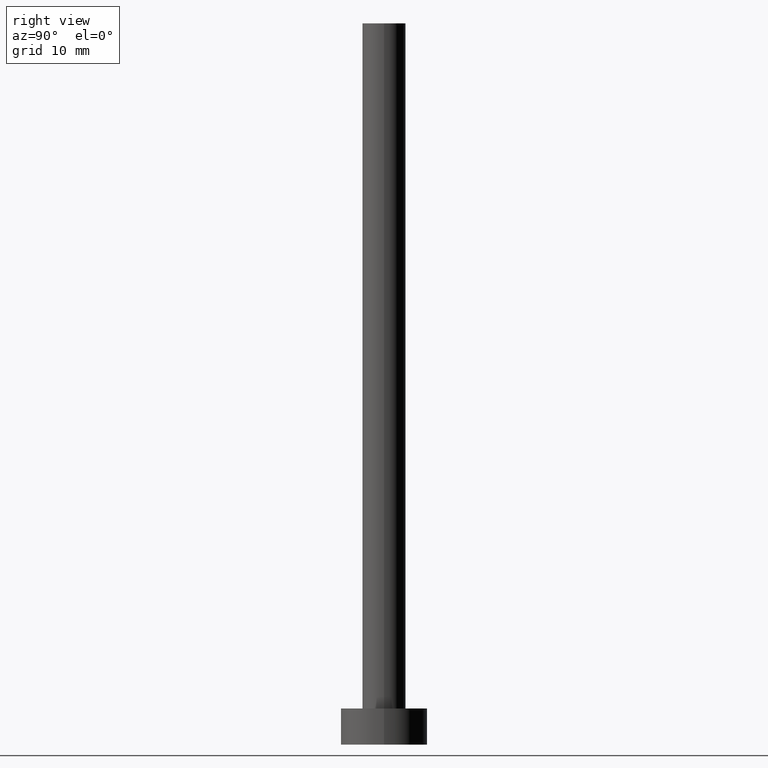
[diagram: clean part render]
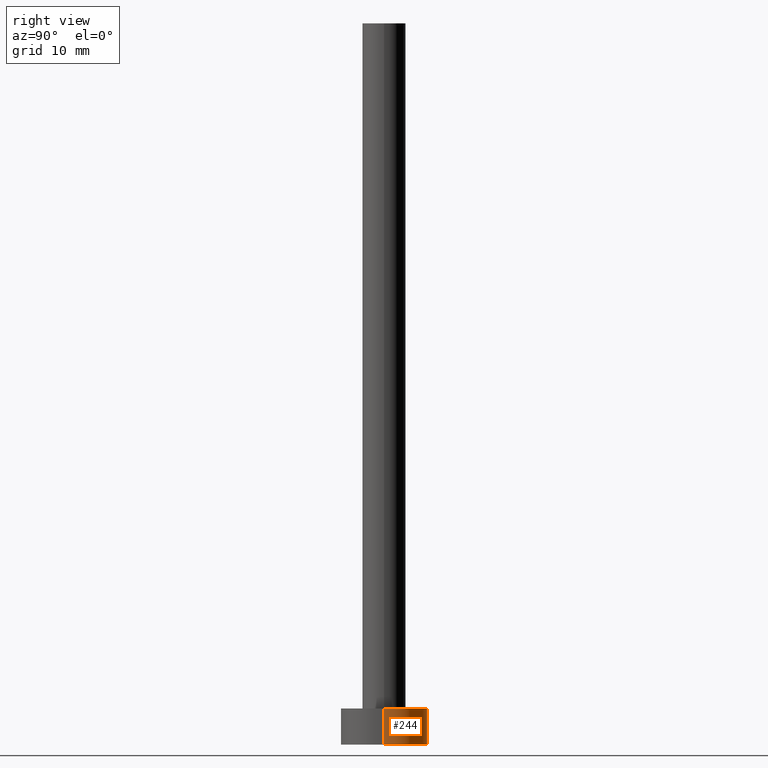
[diagram: same view with one face highlighted and labeled with its STEP entity id]
A machine part, right view. The second image highlights one B-rep face of the part: STEP entity #244.
In plain terms, the highlighted cylindrical surface (partial cylindrical patch) has radius 6 mm, axis along (-0, -0, -1).
Its self-contained STEP definition (entity closure, byte-faithful):
#12 = CARTESIAN_POINT ( 'NONE',  ( 0.000000000000000000, 0.000000000000000000, 0.000000000000000000 ) ) ;
#16 = CARTESIAN_POINT ( 'NONE',  ( 6.000000000000000888, 7.347880794884120722E-16, 5.000000000000000000 ) ) ;
#33 = VERTEX_POINT ( 'NONE', #35 ) ;
#35 = CARTESIAN_POINT ( 'NONE',  ( 6.000000000000000888, 7.347880794884120722E-16, 5.000000000000000000 ) ) ;
#36 = CARTESIAN_POINT ( 'NONE',  ( 6.000000000000000888, 7.347880794884120722E-16, 0.000000000000000000 ) ) ;
#56 = DIRECTION ( 'NONE',  ( -1.000000000000000000, 0.000000000000000000, 0.000000000000000000 ) ) ;
#70 = DIRECTION ( 'NONE',  ( -0.000000000000000000, -0.000000000000000000, -1.000000000000000000 ) ) ;
#72 = LINE ( 'NONE', #200, #152 ) ;
#78 = ORIENTED_EDGE ( 'NONE', *, *, #126, .T. ) ;
#81 = EDGE_CURVE ( 'NONE', #33, #188, #215, .T. ) ;
#91 = EDGE_CURVE ( 'NONE', #188, #118, #72, .T. ) ;
#94 = DIRECTION ( 'NONE',  ( 0.000000000000000000, 0.000000000000000000, 1.000000000000000000 ) ) ;
#99 = CIRCLE ( 'NONE', #232, 6.000000000000000888 ) ;
#101 = EDGE_CURVE ( 'NONE', #172, #118, #99, .T. ) ;
#115 = ORIENTED_EDGE ( 'NONE', *, *, #101, .T. ) ;
#118 = VERTEX_POINT ( 'NONE', #221 ) ;
#120 = LINE ( 'NONE', #16, #155 ) ;
#123 = AXIS2_PLACEMENT_3D ( 'NONE', #135, #226, #56 ) ;
#126 = EDGE_CURVE ( 'NONE', #33, #172, #120, .T. ) ;
#135 = CARTESIAN_POINT ( 'NONE',  ( 0.000000000000000000, 0.000000000000000000, 5.000000000000000000 ) ) ;
#141 = EDGE_LOOP ( 'NONE', ( #253, #78, #115, #173 ) ) ;
#149 = DIRECTION ( 'NONE',  ( -0.000000000000000000, -0.000000000000000000, -1.000000000000000000 ) ) ;
#152 = VECTOR ( 'NONE', #70, 1000.000000000000000 ) ;
#154 = CYLINDRICAL_SURFACE ( 'NONE', #123, 6.000000000000000888 ) ;
#155 = VECTOR ( 'NONE', #149, 1000.000000000000000 ) ;
#156 = FACE_OUTER_BOUND ( 'NONE', #141, .T. ) ;
#161 = DIRECTION ( 'NONE',  ( 1.000000000000000000, 0.000000000000000000, 0.000000000000000000 ) ) ;
#172 = VERTEX_POINT ( 'NONE', #36 ) ;
#173 = ORIENTED_EDGE ( 'NONE', *, *, #91, .F. ) ;
#182 = CARTESIAN_POINT ( 'NONE',  ( 0.000000000000000000, 0.000000000000000000, 5.000000000000000000 ) ) ;
#188 = VERTEX_POINT ( 'NONE', #248 ) ;
#200 = CARTESIAN_POINT ( 'NONE',  ( -6.000000000000000888, 0.000000000000000000, 5.000000000000000000 ) ) ;
#215 = CIRCLE ( 'NONE', #223, 6.000000000000000888 ) ;
#220 = DIRECTION ( 'NONE',  ( 1.000000000000000000, 0.000000000000000000, 0.000000000000000000 ) ) ;
#221 = CARTESIAN_POINT ( 'NONE',  ( -6.000000000000000888, 0.000000000000000000, 0.000000000000000000 ) ) ;
#223 = AXIS2_PLACEMENT_3D ( 'NONE', #182, #243, #220 ) ;
#226 = DIRECTION ( 'NONE',  ( -0.000000000000000000, -0.000000000000000000, -1.000000000000000000 ) ) ;
#232 = AXIS2_PLACEMENT_3D ( 'NONE', #12, #94, #161 ) ;
#243 = DIRECTION ( 'NONE',  ( 0.000000000000000000, 0.000000000000000000, 1.000000000000000000 ) ) ;
#244 = ADVANCED_FACE ( 'NONE', ( #156 ), #154, .T. ) ;
#248 = CARTESIAN_POINT ( 'NONE',  ( -6.000000000000000888, 0.000000000000000000, 5.000000000000000000 ) ) ;
#253 = ORIENTED_EDGE ( 'NONE', *, *, #81, .F. ) ;